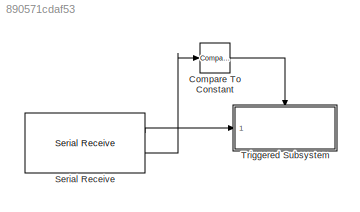
MODEL slx_890571cdaf53
KIND model
BLOCK [Reference] Compare To Constant  REF=simulink/Logic and Bit
Operations/Compare
To Constant
  OutDataTypeStr = boolean
  Ports = [1, 1]
  SourceBlock = simulink/Logic and Bit\nOperations/Compare\nTo Constant
  SourceType = Compare To Constant
  ZeroCross = on
  const = 0
  relop = >
BLOCK [Reference] Serial Receive  REF=arduinolib/Serial Receive
  Ports = [0, 2]
  SourceBlock = arduinolib/Serial Receive
  SourceType = Arduino Serial Receive
  portNumber = 0
  sampleTime = 1e-3
  showOutStatus = on
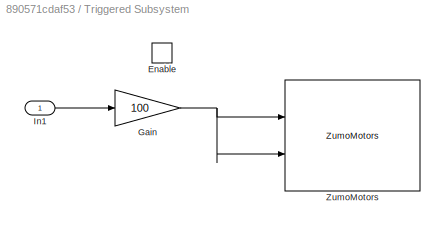
BLOCK [SubSystem] Triggered Subsystem
  Ports = [1, 0, 1]
  RequestExecContextInheritance = off
  TreatAsAtomicUnit = on
BLOCK [EnablePort] Triggered Subsystem/Enable
  Ports = []
BLOCK [Gain] Triggered Subsystem/Gain
  Gain = 100
  OutDataTypeStr = Inherit: Inherit via internal rule
  ParamDataTypeStr = Inherit: Inherit via internal rule
  SaturateOnIntegerOverflow = off
BLOCK [Inport] Triggered Subsystem/In1
  IconDisplay = Port number
BLOCK [Reference] Triggered Subsystem/ZumoMotors  REF=ZumoBotLib/ZumoMotors
  Ports = [2]
  SourceBlock = ZumoBotLib/ZumoMotors
  SourceType = Zumo Motors
  flipLeft = off
  flipRight = off
LINE Compare To Constant:1 -> Triggered Subsystem:enable
LINE Serial Receive:1 -> Triggered Subsystem:1
LINE Serial Receive:2 -> Compare To Constant:1
NET Triggered Subsystem/Gain:1 -> Triggered Subsystem/ZumoMotors:1, Triggered Subsystem/ZumoMotors:2
LINE Triggered Subsystem/In1:1 -> Triggered Subsystem/Gain:1
note: NET lines group one-source signal fan-out (src -> all destinations, sorted); 1:1 wires keep LINE
